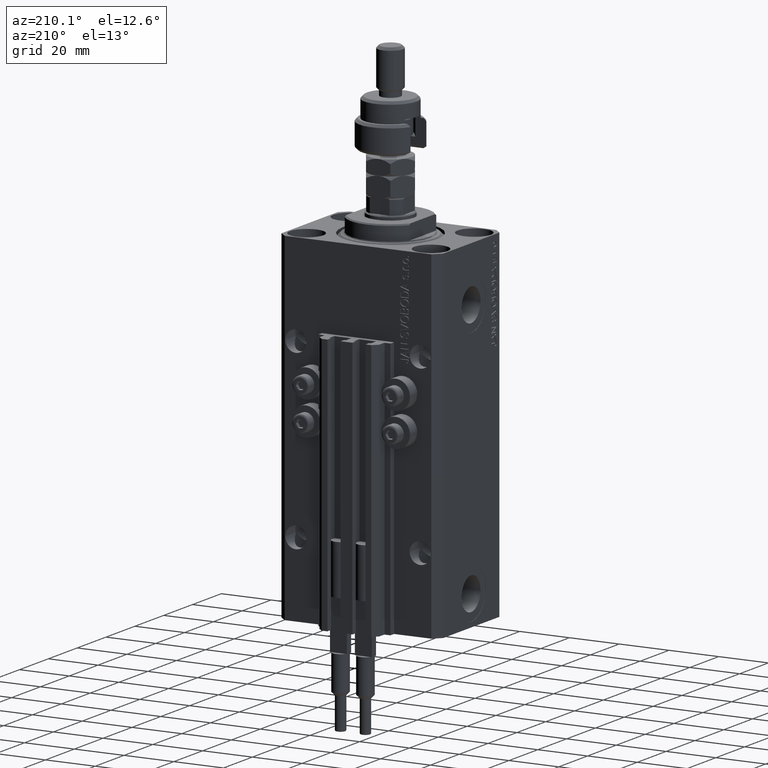
[diagram: clean part render]
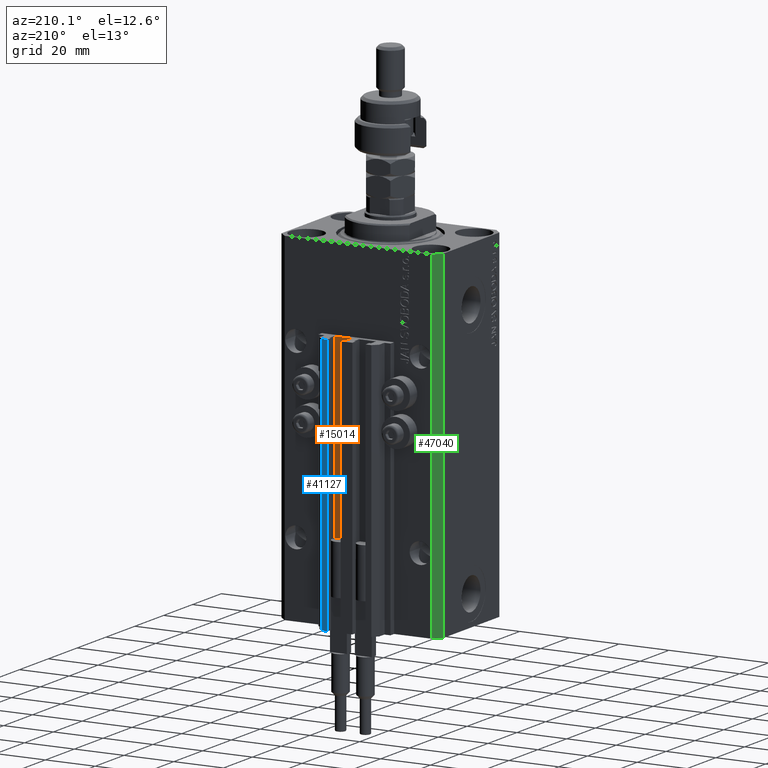
[diagram: same view with three faces highlighted in distinct colors, each labeled with its STEP entity id]
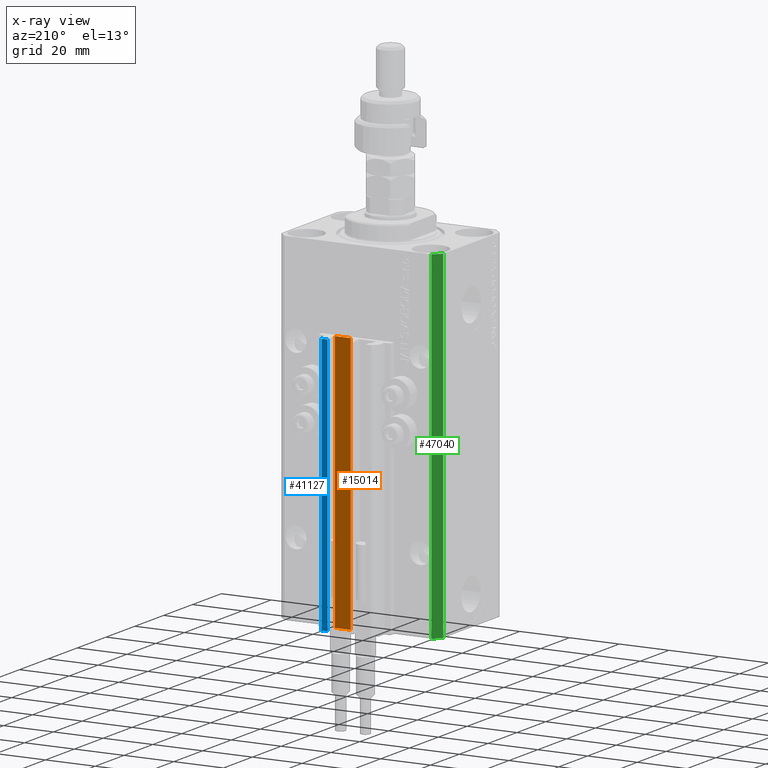
[diagram: x-ray of the same camera — body ghosted, the three highlighted faces saturated]
A machine part, auxiliary view with three faces highlighted in distinct colors.
The next image is the same camera in x-ray (body ghosted, the three faces saturated) — at least one of them is partly hidden behind the body in this view.
Their STEP definitions:

[orange] entity #15014 — the highlighted planar face has unit normal (0, 1, 0).
#3214 = VERTEX_POINT ( 'NONE', #22300 ) ;
#5566 = CARTESIAN_POINT ( 'NONE',  ( 8.200000000000001066, 24.49999999999949196, -33.00000000000000000 ) ) ;
#5825 = LINE ( 'NONE', #5566, #46344 ) ;
#6583 = FACE_OUTER_BOUND ( 'NONE', #35112, .T. ) ;
#7280 = VERTEX_POINT ( 'NONE', #27127 ) ;
#7833 = VECTOR ( 'NONE', #45806, 1000.000000000000000 ) ;
#9047 = EDGE_CURVE ( 'NONE', #37922, #49598, #24229, .T. ) ;
#11028 = EDGE_CURVE ( 'NONE', #49598, #7280, #5825, .T. ) ;
#14083 = EDGE_CURVE ( 'NONE', #37922, #3214, #35347, .T. ) ;
#14434 = PLANE ( 'NONE',  #15358 ) ;
#15014 = ADVANCED_FACE ( 'NONE', ( #6583 ), #14434, .T. ) ;
#15358 = AXIS2_PLACEMENT_3D ( 'NONE', #34652, #42761, #17857 ) ;
#16355 = DIRECTION ( 'NONE',  ( 0.000000000000000000, 0.000000000000000000, 1.000000000000000000 ) ) ;
#17857 = DIRECTION ( 'NONE',  ( 0.000000000000000000, 0.000000000000000000, 1.000000000000000000 ) ) ;
#21561 = DIRECTION ( 'NONE',  ( -1.000000000000000000, 0.000000000000000000, 0.000000000000000000 ) ) ;
#22300 = CARTESIAN_POINT ( 'NONE',  ( 1.800000000000000933, 24.49999999999949196, -137.0000000000000000 ) ) ;
#22564 = ORIENTED_EDGE ( 'NONE', *, *, #14083, .T. ) ;
#24215 = ORIENTED_EDGE ( 'NONE', *, *, #9047, .F. ) ;
#24229 = LINE ( 'NONE', #40237, #27834 ) ;
#24530 = VECTOR ( 'NONE', #31925, 1000.000000000000000 ) ;
#27127 = CARTESIAN_POINT ( 'NONE',  ( 1.800000000000000933, 24.49999999999949196, -33.00000000000000000 ) ) ;
#27481 = CARTESIAN_POINT ( 'NONE',  ( 8.200000000000001066, 24.49999999999949196, -137.0000000000000000 ) ) ;
#27834 = VECTOR ( 'NONE', #16355, 1000.000000000000000 ) ;
#29808 = CARTESIAN_POINT ( 'NONE',  ( 1.800000000000000933, 24.49999999999949196, -137.0000000000000000 ) ) ;
#31114 = ORIENTED_EDGE ( 'NONE', *, *, #11028, .F. ) ;
#31251 = CARTESIAN_POINT ( 'NONE',  ( 8.200000000000001066, 24.49999999999949196, -33.00000000000000000 ) ) ;
#31925 = DIRECTION ( 'NONE',  ( -1.000000000000000000, 0.000000000000000000, 0.000000000000000000 ) ) ;
#32809 = EDGE_CURVE ( 'NONE', #3214, #7280, #37692, .T. ) ;
#34212 = ORIENTED_EDGE ( 'NONE', *, *, #32809, .T. ) ;
#34652 = CARTESIAN_POINT ( 'NONE',  ( 8.200000000000001066, 24.49999999999949196, -137.0000000000000000 ) ) ;
#35112 = EDGE_LOOP ( 'NONE', ( #31114, #24215, #22564, #34212 ) ) ;
#35347 = LINE ( 'NONE', #27481, #24530 ) ;
#37098 = CARTESIAN_POINT ( 'NONE',  ( 8.200000000000001066, 24.49999999999949196, -137.0000000000000000 ) ) ;
#37692 = LINE ( 'NONE', #29808, #7833 ) ;
#37922 = VERTEX_POINT ( 'NONE', #37098 ) ;
#40237 = CARTESIAN_POINT ( 'NONE',  ( 8.200000000000001066, 24.49999999999949196, -137.0000000000000000 ) ) ;
#42761 = DIRECTION ( 'NONE',  ( 0.000000000000000000, 1.000000000000000000, -0.000000000000000000 ) ) ;
#45806 = DIRECTION ( 'NONE',  ( 0.000000000000000000, 0.000000000000000000, 1.000000000000000000 ) ) ;
#46344 = VECTOR ( 'NONE', #21561, 1000.000000000000000 ) ;
#49598 = VERTEX_POINT ( 'NONE', #31251 ) ;

[blue] entity #41127 — the highlighted planar face has unit normal (-0, 1, 0).
#597 = DIRECTION ( 'NONE',  ( -1.476360405086645049E-15, 1.000000000000000000, 0.000000000000000000 ) ) ;
#1461 = ORIENTED_EDGE ( 'NONE', *, *, #8156, .T. ) ;
#2181 = DIRECTION ( 'NONE',  ( 0.000000000000000000, 0.000000000000000000, 1.000000000000000000 ) ) ;
#2917 = VECTOR ( 'NONE', #42137, 1000.000000000000000 ) ;
#6102 = VECTOR ( 'NONE', #39562, 1000.000000000000000 ) ;
#7324 = DIRECTION ( 'NONE',  ( 0.000000000000000000, 0.000000000000000000, 1.000000000000000000 ) ) ;
#7683 = PLANE ( 'NONE',  #48216 ) ;
#8156 = EDGE_CURVE ( 'NONE', #30744, #39469, #42297, .T. ) ;
#10087 = CARTESIAN_POINT ( 'NONE',  ( 7.649999999999995026, 30.49999999999949196, -137.0000000000000000 ) ) ;
#10558 = CARTESIAN_POINT ( 'NONE',  ( 9.999999999999994671, 30.49999999999949551, -33.00000000000000000 ) ) ;
#12133 = CARTESIAN_POINT ( 'NONE',  ( 9.999999999999994671, 30.49999999999949551, -137.0000000000000000 ) ) ;
#12778 = CARTESIAN_POINT ( 'NONE',  ( 9.999999999999994671, 30.49999999999949551, -33.00000000000000000 ) ) ;
#14932 = LINE ( 'NONE', #18344, #40893 ) ;
#18344 = CARTESIAN_POINT ( 'NONE',  ( 9.999999999999994671, 30.49999999999949551, -137.0000000000000000 ) ) ;
#19323 = ORIENTED_EDGE ( 'NONE', *, *, #24909, .F. ) ;
#20384 = LINE ( 'NONE', #12778, #6102 ) ;
#22115 = VERTEX_POINT ( 'NONE', #23993 ) ;
#23672 = FACE_OUTER_BOUND ( 'NONE', #30694, .T. ) ;
#23993 = CARTESIAN_POINT ( 'NONE',  ( 9.999999999999994671, 30.49999999999949551, -137.0000000000000000 ) ) ;
#24909 = EDGE_CURVE ( 'NONE', #22115, #51670, #14932, .T. ) ;
#28886 = ORIENTED_EDGE ( 'NONE', *, *, #38602, .T. ) ;
#29496 = VECTOR ( 'NONE', #2181, 1000.000000000000000 ) ;
#30694 = EDGE_LOOP ( 'NONE', ( #46110, #19323, #28886, #1461 ) ) ;
#30744 = VERTEX_POINT ( 'NONE', #10087 ) ;
#32664 = CARTESIAN_POINT ( 'NONE',  ( 7.649999999999995026, 30.49999999999949196, -33.00000000000000000 ) ) ;
#33741 = EDGE_CURVE ( 'NONE', #51670, #39469, #20384, .T. ) ;
#37696 = CARTESIAN_POINT ( 'NONE',  ( 9.999999999999994671, 30.49999999999949551, -137.0000000000000000 ) ) ;
#38602 = EDGE_CURVE ( 'NONE', #22115, #30744, #40318, .T. ) ;
#38624 = CARTESIAN_POINT ( 'NONE',  ( 7.649999999999995026, 30.49999999999949196, -137.0000000000000000 ) ) ;
#39469 = VERTEX_POINT ( 'NONE', #32664 ) ;
#39562 = DIRECTION ( 'NONE',  ( -1.000000000000000000, -1.476360405086644852E-15, 0.000000000000000000 ) ) ;
#40318 = LINE ( 'NONE', #37696, #2917 ) ;
#40893 = VECTOR ( 'NONE', #7324, 1000.000000000000000 ) ;
#41127 = ADVANCED_FACE ( 'NONE', ( #23672 ), #7683, .T. ) ;
#42137 = DIRECTION ( 'NONE',  ( -1.000000000000000000, -1.476360405086644852E-15, 0.000000000000000000 ) ) ;
#42297 = LINE ( 'NONE', #38624, #29496 ) ;
#46110 = ORIENTED_EDGE ( 'NONE', *, *, #33741, .F. ) ;
#48216 = AXIS2_PLACEMENT_3D ( 'NONE', #12133, #597, #48584 ) ;
#48584 = DIRECTION ( 'NONE',  ( -1.000000000000000000, -1.476360405086645049E-15, 0.000000000000000000 ) ) ;
#51670 = VERTEX_POINT ( 'NONE', #10558 ) ;

[green] entity #47040 — the highlighted planar face has unit normal (-0.7071, 0.7071, 0).
#1960 = EDGE_LOOP ( 'NONE', ( #11652, #32466, #20696, #40429 ) ) ;
#3285 = LINE ( 'NONE', #27666, #28098 ) ;
#3992 = DIRECTION ( 'NONE',  ( 0.000000000000000000, 0.000000000000000000, 1.000000000000000000 ) ) ;
#5253 = EDGE_CURVE ( 'NONE', #43779, #45712, #16835, .T. ) ;
#5395 = CARTESIAN_POINT ( 'NONE',  ( -32.49999999999650413, 19.49999999999949907, 0.000000000000000000 ) ) ;
#5781 = CARTESIAN_POINT ( 'NONE',  ( -32.49999999999650413, 19.49999999999949907, -137.0000000000000000 ) ) ;
#7254 = DIRECTION ( 'NONE',  ( -0.7071067811865475727, 0.7071067811865475727, 0.000000000000000000 ) ) ;
#7922 = LINE ( 'NONE', #48297, #22049 ) ;
#9015 = AXIS2_PLACEMENT_3D ( 'NONE', #14604, #7254, #14339 ) ;
#11652 = ORIENTED_EDGE ( 'NONE', *, *, #5253, .F. ) ;
#14339 = DIRECTION ( 'NONE',  ( -0.7071067811865474617, -0.7071067811865474617, 0.000000000000000000 ) ) ;
#14604 = CARTESIAN_POINT ( 'NONE',  ( -29.49999999999650413, 22.49999999999949907, -137.0000000000000000 ) ) ;
#15140 = VECTOR ( 'NONE', #16577, 1000.000000000000114 ) ;
#16577 = DIRECTION ( 'NONE',  ( -0.7071067811865474617, -0.7071067811865474617, 0.000000000000000000 ) ) ;
#16835 = LINE ( 'NONE', #44122, #15140 ) ;
#17261 = CARTESIAN_POINT ( 'NONE',  ( -29.49999999999650413, 22.49999999999949907, -137.0000000000000000 ) ) ;
#20376 = EDGE_CURVE ( 'NONE', #47045, #47479, #45335, .T. ) ;
#20696 = ORIENTED_EDGE ( 'NONE', *, *, #20376, .T. ) ;
#22049 = VECTOR ( 'NONE', #3992, 1000.000000000000000 ) ;
#22692 = DIRECTION ( 'NONE',  ( 0.000000000000000000, 0.000000000000000000, 1.000000000000000000 ) ) ;
#22731 = CARTESIAN_POINT ( 'NONE',  ( -29.49999999999650413, 22.49999999999949907, -137.0000000000000000 ) ) ;
#27666 = CARTESIAN_POINT ( 'NONE',  ( -32.49999999999650413, 19.49999999999949907, -137.0000000000000000 ) ) ;
#28098 = VECTOR ( 'NONE', #22692, 1000.000000000000000 ) ;
#28156 = VECTOR ( 'NONE', #34061, 1000.000000000000114 ) ;
#30620 = PLANE ( 'NONE',  #9015 ) ;
#30874 = FACE_OUTER_BOUND ( 'NONE', #1960, .T. ) ;
#32022 = EDGE_CURVE ( 'NONE', #47045, #43779, #7922, .T. ) ;
#32466 = ORIENTED_EDGE ( 'NONE', *, *, #32022, .F. ) ;
#34061 = DIRECTION ( 'NONE',  ( -0.7071067811865474617, -0.7071067811865474617, 0.000000000000000000 ) ) ;
#40429 = ORIENTED_EDGE ( 'NONE', *, *, #40599, .T. ) ;
#40599 = EDGE_CURVE ( 'NONE', #47479, #45712, #3285, .T. ) ;
#43779 = VERTEX_POINT ( 'NONE', #48313 ) ;
#44122 = CARTESIAN_POINT ( 'NONE',  ( -29.49999999999650413, 22.49999999999949907, 0.000000000000000000 ) ) ;
#45335 = LINE ( 'NONE', #17261, #28156 ) ;
#45712 = VERTEX_POINT ( 'NONE', #5395 ) ;
#47040 = ADVANCED_FACE ( 'NONE', ( #30874 ), #30620, .T. ) ;
#47045 = VERTEX_POINT ( 'NONE', #22731 ) ;
#47479 = VERTEX_POINT ( 'NONE', #5781 ) ;
#48297 = CARTESIAN_POINT ( 'NONE',  ( -29.49999999999650413, 22.49999999999949907, -137.0000000000000000 ) ) ;
#48313 = CARTESIAN_POINT ( 'NONE',  ( -29.49999999999650413, 22.49999999999949907, 0.000000000000000000 ) ) ;